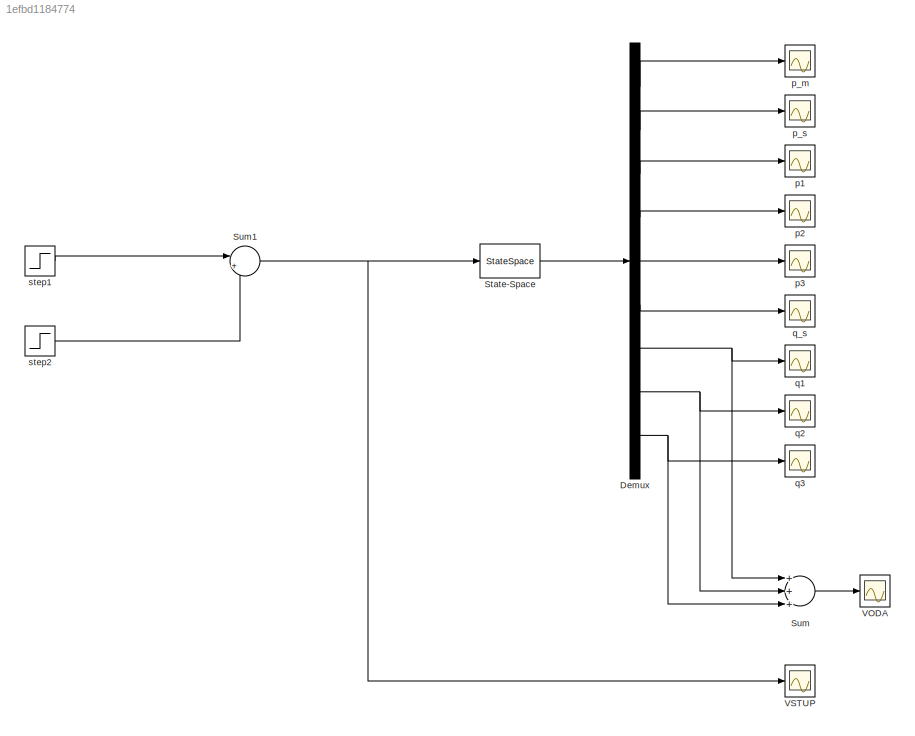
MODEL slx_1efbd1184774
KIND model
BLOCK [Demux] Demux
  DisplayOption = bar
  Outputs = 9
  Ports = [1, 9]
BLOCK [StateSpace] State-Space
  A = A
  B = B
  C = C
  D = D
  X0 = x0
BLOCK [Sum] Sum
  InputSameDT = off
  Inputs = +++
  OutDataTypeStr = Inherit: Inherit via internal rule
  Ports = [3, 1]
  SaturateOnIntegerOverflow = off
BLOCK [Sum] Sum1
  IconShape = round
  InputSameDT = off
  Inputs = |+-
  OutDataTypeStr = Inherit: Inherit via internal rule
  Ports = [2, 1]
  SaturateOnIntegerOverflow = off
BLOCK [Scope] VODA
  DataFormat = StructureWithTime
  Floating = off
  LimitDataPoints = off
  NumInputPorts = 1
  Ports = [1]
  SampleTime = 0
  SaveName = ScopeData6
  ShowLegends = off
BLOCK [Scope] VSTUP
  Floating = off
  LimitDataPoints = off
  NumInputPorts = 1
  Ports = [1]
  SampleTime = 0
  SaveName = scope_input
  SaveToWorkspace = on
  ShowLegends = off
  ZoomMode = yonly
BLOCK [Scope] p1
  DataFormat = StructureWithTime
  Floating = off
  NumInputPorts = 1
  Ports = [1]
  SampleTime = 0
  SaveName = ScopeData3
  ShowLegends = off
  ZoomMode = xonly
BLOCK [Scope] p2
  DataFormat = StructureWithTime
  Floating = off
  NumInputPorts = 1
  Ports = [1]
  SampleTime = 0
  SaveName = ScopeData2
  ShowLegends = off
  ZoomMode = yonly
BLOCK [Scope] p3
  DataFormat = StructureWithTime
  Floating = off
  LimitDataPoints = off
  NumInputPorts = 1
  Ports = [1]
  SampleTime = 0
  SaveName = ScopeData1
  ShowLegends = off
  TimeRange = 300
  YMax = 5e-06
  YMin = 0
BLOCK [Scope] p_m
  DataFormat = StructureWithTime
  Floating = off
  NumInputPorts = 1
  Ports = [1]
  SampleTime = 0
  SaveName = ScopeData5
  ShowLegends = off
  ZoomMode = xonly
BLOCK [Scope] p_s
  DataFormat = StructureWithTime
  Floating = off
  NumInputPorts = 1
  Ports = [1]
  SampleTime = 0
  SaveName = ScopeData4
  ShowLegends = off
  ZoomMode = yonly
BLOCK [Scope] q1
  DataFormat = StructureWithTime
  Floating = off
  LimitDataPoints = off
  NumInputPorts = 1
  Ports = [1]
  SampleTime = 0
  SaveName = scope_prva_nadrz
  SaveToWorkspace = on
  ShowLegends = off
  ZoomMode = yonly
BLOCK [Scope] q2
  DataFormat = StructureWithTime
  Floating = off
  LimitDataPoints = off
  NumInputPorts = 1
  Ports = [1]
  SampleTime = 0
  SaveName = scope_druha_nadrz
  SaveToWorkspace = on
  ShowLegends = off
  TimeRange = 1000
  YMax = 0.0006000000000000001
  YMin = 0
  ZoomMode = yonly
BLOCK [Scope] q3
  DataFormat = StructureWithTime
  Floating = off
  LimitDataPoints = off
  NumInputPorts = 1
  Ports = [1]
  SampleTime = 0
  SaveName = scope_tretia_nadrz
  SaveToWorkspace = on
  ShowLegends = off
  ZoomMode = yonly
BLOCK [Scope] q_s
  DataFormat = StructureWithTime
  Floating = off
  NumInputPorts = 1
  Ports = [1]
  SampleTime = 0
  ShowLegends = off
  ZoomMode = yonly
BLOCK [Step] step1
  After = step1_final
  Before = step1_initial
  SampleTime = 0
  Time = step1_time
BLOCK [Step] step2
  After = step2_final
  Before = step2_initial
  SampleTime = 0
  Time = step2_time
LINE Demux:1 -> p_m:1
LINE Demux:2 -> p_s:1
LINE Demux:3 -> p1:1
LINE Demux:4 -> p2:1
LINE Demux:5 -> p3:1
LINE Demux:6 -> q_s:1
NET Demux:7 -> Sum:1, q1:1
NET Demux:8 -> Sum:2, q2:1
NET Demux:9 -> Sum:3, q3:1
LINE State-Space:1 -> Demux:1
NET Sum1:1 -> State-Space:1, VSTUP:1
LINE Sum:1 -> VODA:1
LINE step1:1 -> Sum1:1
LINE step2:1 -> Sum1:2
note: NET lines group one-source signal fan-out (src -> all destinations, sorted); 1:1 wires keep LINE
